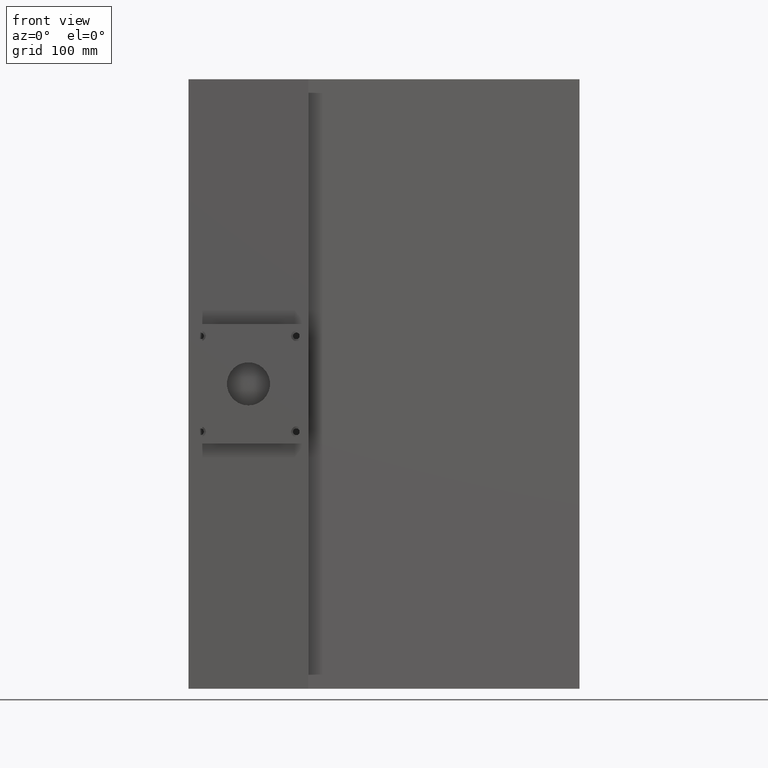
[diagram: clean part render]
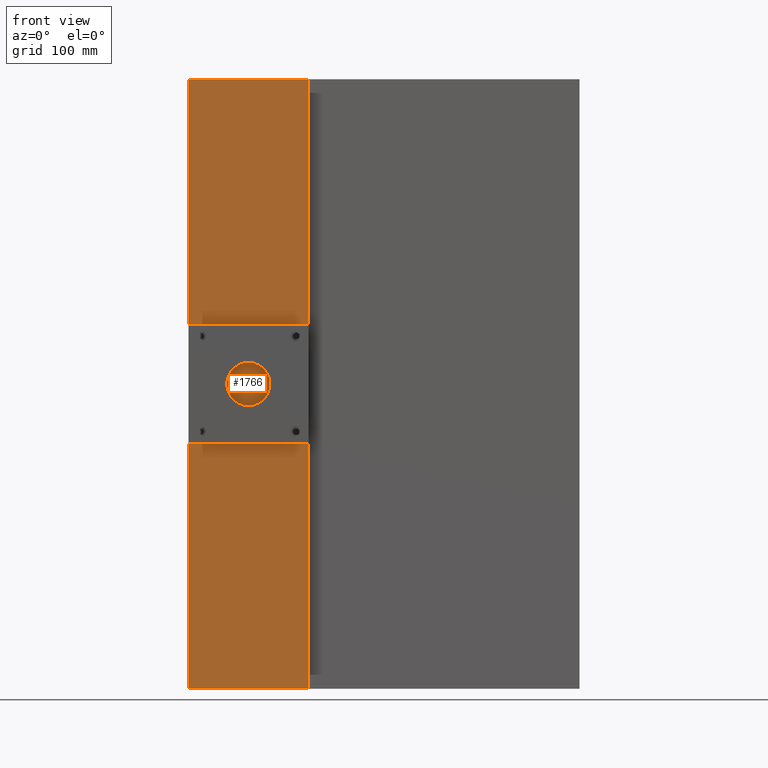
[diagram: same view with one face highlighted and labeled with its STEP entity id]
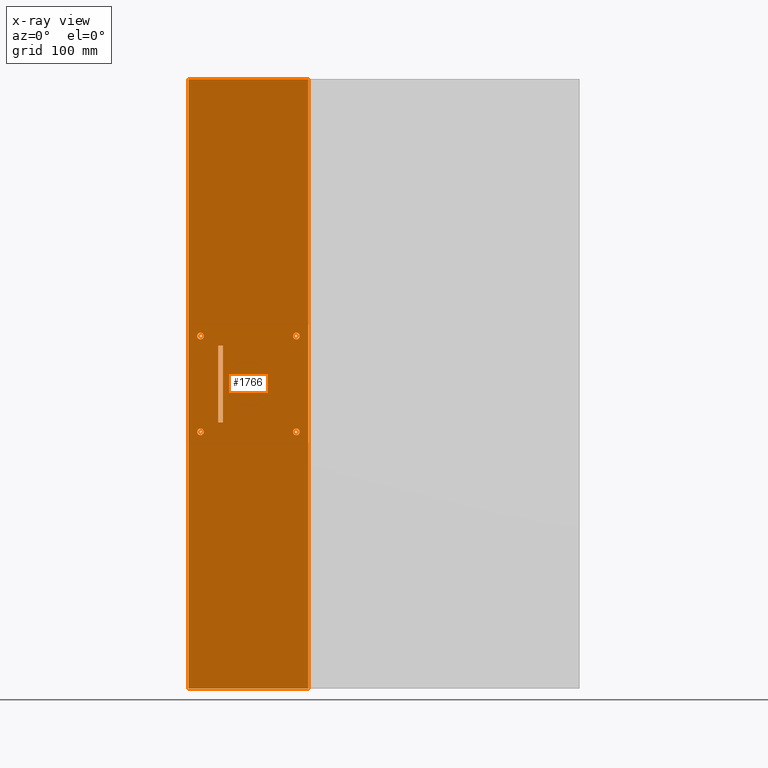
[diagram: x-ray of the same camera — body ghosted, the highlighted face saturated]
A machine part, front view. The second image highlights one B-rep face of the part: STEP entity #1766.
The next image is the same camera in x-ray: the body ghosted, the highlighted face saturated — about 0% of this face is hidden behind the body in this view.
In plain terms, the highlighted planar face has unit normal (0, 1, -0).
Its self-contained STEP definition (entity closure, byte-faithful):
#24 = ORIENTED_EDGE ( 'NONE', *, *, #1451, .F. ) ;
#36 = LINE ( 'NONE', #2541, #110 ) ;
#74 = VERTEX_POINT ( 'NONE', #1761 ) ;
#110 = VECTOR ( 'NONE', #2767, 1000.000000000000000 ) ;
#124 = AXIS2_PLACEMENT_3D ( 'NONE', #817, #826, #828 ) ;
#132 = LINE ( 'NONE', #763, #638 ) ;
#136 = AXIS2_PLACEMENT_3D ( 'NONE', #484, #499, #819 ) ;
#154 = EDGE_CURVE ( 'NONE', #1225, #74, #2526, .T. ) ;
#207 = EDGE_LOOP ( 'NONE', ( #1497, #576 ) ) ;
#208 = EDGE_LOOP ( 'NONE', ( #1564, #479 ) ) ;
#259 = FACE_BOUND ( 'NONE', #208, .T. ) ;
#263 = CARTESIAN_POINT ( 'NONE',  ( 8.383617539203390500, -70.00000000000001400, 50.00000000000004300 ) ) ;
#266 = CARTESIAN_POINT ( 'NONE',  ( -68.11638246079654400, -70.00000000000000000, -39.99999999999997900 ) ) ;
#278 = DIRECTION ( 'NONE',  ( 3.118604001756058900E-016, -1.000000000000000000, 0.0000000000000000000 ) ) ;
#282 = DIRECTION ( 'NONE',  ( 1.000000000000000000, 0.0000000000000000000, 0.0000000000000000000 ) ) ;
#294 = VERTEX_POINT ( 'NONE', #2608 ) ;
#302 = VERTEX_POINT ( 'NONE', #2843 ) ;
#314 = CARTESIAN_POINT ( 'NONE',  ( -91.61638246079657200, -70.00000000000004300, 50.00000000000004300 ) ) ;
#325 = CARTESIAN_POINT ( 'NONE',  ( 11.88361753920339800, -70.00000000000001400, 50.00000000000004300 ) ) ;
#340 = VECTOR ( 'NONE', #2295, 1000.000000000000000 ) ;
#345 = EDGE_CURVE ( 'NONE', #797, #2238, #1992, .T. ) ;
#348 = DIRECTION ( 'NONE',  ( -0.0000000000000000000, -0.0000000000000000000, -1.000000000000000000 ) ) ;
#363 = ORIENTED_EDGE ( 'NONE', *, *, #389, .T. ) ;
#389 = EDGE_CURVE ( 'NONE', #2451, #1396, #1416, .T. ) ;
#412 = CARTESIAN_POINT ( 'NONE',  ( -91.61638246079657200, -70.00000000000004300, 50.00000000000004300 ) ) ;
#424 = VERTEX_POINT ( 'NONE', #2064 ) ;
#479 = ORIENTED_EDGE ( 'NONE', *, *, #2793, .F. ) ;
#484 = CARTESIAN_POINT ( 'NONE',  ( -91.61638246079657200, -70.00000000000004300, -50.00000000000004300 ) ) ;
#499 = DIRECTION ( 'NONE',  ( 3.118604001756058900E-016, -1.000000000000000000, -0.0000000000000000000 ) ) ;
#505 = CIRCLE ( 'NONE', #1754, 3.500000000000008400 ) ;
#576 = ORIENTED_EDGE ( 'NONE', *, *, #345, .F. ) ;
#621 = EDGE_LOOP ( 'NONE', ( #24, #2107 ) ) ;
#632 = DIRECTION ( 'NONE',  ( 3.118604001756058900E-016, -1.000000000000000000, 0.0000000000000000000 ) ) ;
#638 = VECTOR ( 'NONE', #1106, 1000.000000000000000 ) ;
#640 = CARTESIAN_POINT ( 'NONE',  ( 20.88361753920343500, -70.00000000000001400, -318.0000000000000000 ) ) ;
#641 = ORIENTED_EDGE ( 'NONE', *, *, #2844, .F. ) ;
#661 = DIRECTION ( 'NONE',  ( 3.118604001756058900E-016, -1.000000000000000000, 0.0000000000000000000 ) ) ;
#670 = DIRECTION ( 'NONE',  ( 1.000000000000000000, -1.559302000878029000E-016, -0.0000000000000000000 ) ) ;
#676 = VECTOR ( 'NONE', #2469, 1000.000000000000000 ) ;
#727 = CARTESIAN_POINT ( 'NONE',  ( -68.11638246079655800, -70.00000000000000000, 318.0000000000000000 ) ) ;
#763 = CARTESIAN_POINT ( 'NONE',  ( 20.88361753920343500, -70.00000000000001400, 318.0000000000000000 ) ) ;
#797 = VERTEX_POINT ( 'NONE', #2172 ) ;
#817 = CARTESIAN_POINT ( 'NONE',  ( 8.383617539203390500, -70.00000000000001400, -50.00000000000004300 ) ) ;
#819 = DIRECTION ( 'NONE',  ( -1.000000000000000000, 0.0000000000000000000, 0.0000000000000000000 ) ) ;
#826 = DIRECTION ( 'NONE',  ( 3.118604001756058900E-016, -1.000000000000000000, -0.0000000000000000000 ) ) ;
#828 = DIRECTION ( 'NONE',  ( -1.000000000000000000, 0.0000000000000000000, 0.0000000000000000000 ) ) ;
#830 = LINE ( 'NONE', #2463, #676 ) ;
#834 = VECTOR ( 'NONE', #348, 1000.000000000000000 ) ;
#839 = VERTEX_POINT ( 'NONE', #1961 ) ;
#844 = CIRCLE ( 'NONE', #124, 3.500000000000008400 ) ;
#878 = FACE_BOUND ( 'NONE', #2490, .T. ) ;
#937 = EDGE_CURVE ( 'NONE', #2238, #797, #1361, .T. ) ;
#956 = EDGE_LOOP ( 'NONE', ( #2041, #2210, #641, #1271 ) ) ;
#1099 = DIRECTION ( 'NONE',  ( 1.000000000000000000, 0.0000000000000000000, 0.0000000000000000000 ) ) ;
#1106 = DIRECTION ( 'NONE',  ( -0.0000000000000000000, -0.0000000000000000000, -1.000000000000000000 ) ) ;
#1159 = CARTESIAN_POINT ( 'NONE',  ( 20.88361753920343500, -70.00000000000001400, 318.0000000000000000 ) ) ;
#1185 = CIRCLE ( 'NONE', #136, 3.500000000000003100 ) ;
#1194 = VERTEX_POINT ( 'NONE', #325 ) ;
#1218 = EDGE_CURVE ( 'NONE', #1396, #1793, #36, .T. ) ;
#1225 = VERTEX_POINT ( 'NONE', #1788 ) ;
#1243 = DIRECTION ( 'NONE',  ( -1.000000000000000000, 0.0000000000000000000, 0.0000000000000000000 ) ) ;
#1271 = ORIENTED_EDGE ( 'NONE', *, *, #1872, .F. ) ;
#1361 = CIRCLE ( 'NONE', #1652, 3.500000000000003100 ) ;
#1396 = VERTEX_POINT ( 'NONE', #266 ) ;
#1416 = LINE ( 'NONE', #727, #340 ) ;
#1451 = EDGE_CURVE ( 'NONE', #294, #839, #844, .T. ) ;
#1497 = ORIENTED_EDGE ( 'NONE', *, *, #937, .F. ) ;
#1514 = CARTESIAN_POINT ( 'NONE',  ( 4.883617539203381600, -70.00000000000001400, 50.00000000000004300 ) ) ;
#1555 = CARTESIAN_POINT ( 'NONE',  ( 20.88361753920343500, -70.00000000000001400, 318.0000000000000000 ) ) ;
#1556 = PLANE ( 'NONE',  #1931 ) ;
#1562 = DIRECTION ( 'NONE',  ( 1.559302000878029200E-016, 1.000000000000000000, -0.0000000000000000000 ) ) ;
#1564 = ORIENTED_EDGE ( 'NONE', *, *, #154, .F. ) ;
#1568 = DIRECTION ( 'NONE',  ( -1.000000000000000000, 1.559302000878029200E-016, 0.0000000000000000000 ) ) ;
#1593 = VERTEX_POINT ( 'NONE', #1159 ) ;
#1596 = CARTESIAN_POINT ( 'NONE',  ( -73.11638246079655800, -70.00000000000000000, -39.99999999999997900 ) ) ;
#1629 = CIRCLE ( 'NONE', #2222, 3.500000000000008400 ) ;
#1652 = AXIS2_PLACEMENT_3D ( 'NONE', #314, #661, #2794 ) ;
#1653 = CARTESIAN_POINT ( 'NONE',  ( 8.383617539203390500, -70.00000000000001400, -50.00000000000004300 ) ) ;
#1655 = DIRECTION ( 'NONE',  ( 3.118604001756058900E-016, -1.000000000000000000, -0.0000000000000000000 ) ) ;
#1659 = DIRECTION ( 'NONE',  ( -1.000000000000000000, 0.0000000000000000000, 0.0000000000000000000 ) ) ;
#1675 = ORIENTED_EDGE ( 'NONE', *, *, #2788, .F. ) ;
#1714 = FACE_BOUND ( 'NONE', #2826, .T. ) ;
#1749 = VERTEX_POINT ( 'NONE', #1514 ) ;
#1754 = AXIS2_PLACEMENT_3D ( 'NONE', #2004, #2008, #2009 ) ;
#1758 = CARTESIAN_POINT ( 'NONE',  ( -73.11638246079655800, -70.00000000000001400, 318.0000000000000000 ) ) ;
#1761 = CARTESIAN_POINT ( 'NONE',  ( -95.11638246079658600, -70.00000000000004300, -50.00000000000004300 ) ) ;
#1762 = DIRECTION ( 'NONE',  ( 1.000000000000000000, 4.476705744456276300E-016, -0.0000000000000000000 ) ) ;
#1766 = ADVANCED_FACE ( 'NONE', ( #1714, #259, #2932, #2091, #2868, #878 ), #1556, .F. ) ;
#1788 = CARTESIAN_POINT ( 'NONE',  ( -88.11638246079657200, -70.00000000000004300, -50.00000000000004300 ) ) ;
#1789 = ORIENTED_EDGE ( 'NONE', *, *, #1218, .T. ) ;
#1793 = VERTEX_POINT ( 'NONE', #1596 ) ;
#1803 = CARTESIAN_POINT ( 'NONE',  ( -88.11638246079657200, -70.00000000000004300, 50.00000000000004300 ) ) ;
#1812 = EDGE_CURVE ( 'NONE', #839, #294, #2774, .T. ) ;
#1850 = LINE ( 'NONE', #2769, #2118 ) ;
#1872 = EDGE_CURVE ( 'NONE', #2766, #1593, #2254, .T. ) ;
#1911 = AXIS2_PLACEMENT_3D ( 'NONE', #412, #632, #1099 ) ;
#1931 = AXIS2_PLACEMENT_3D ( 'NONE', #1555, #1562, #1568 ) ;
#1961 = CARTESIAN_POINT ( 'NONE',  ( 4.883617539203381600, -70.00000000000001400, -50.00000000000004300 ) ) ;
#1992 = CIRCLE ( 'NONE', #1911, 3.500000000000003100 ) ;
#2004 = CARTESIAN_POINT ( 'NONE',  ( 8.383617539203390500, -70.00000000000001400, 50.00000000000004300 ) ) ;
#2008 = DIRECTION ( 'NONE',  ( 3.118604001756058900E-016, -1.000000000000000000, 0.0000000000000000000 ) ) ;
#2009 = DIRECTION ( 'NONE',  ( 1.000000000000000000, 0.0000000000000000000, 0.0000000000000000000 ) ) ;
#2010 = EDGE_CURVE ( 'NONE', #1749, #1194, #505, .T. ) ;
#2015 = ORIENTED_EDGE ( 'NONE', *, *, #2270, .F. ) ;
#2041 = ORIENTED_EDGE ( 'NONE', *, *, #2627, .T. ) ;
#2059 = AXIS2_PLACEMENT_3D ( 'NONE', #1653, #1655, #1659 ) ;
#2064 = CARTESIAN_POINT ( 'NONE',  ( -73.11638246079655800, -70.00000000000001400, 40.00000000000009200 ) ) ;
#2091 = FACE_BOUND ( 'NONE', #207, .T. ) ;
#2107 = ORIENTED_EDGE ( 'NONE', *, *, #1812, .F. ) ;
#2118 = VECTOR ( 'NONE', #2790, 1000.000000000000000 ) ;
#2172 = CARTESIAN_POINT ( 'NONE',  ( -95.11638246079658600, -70.00000000000004300, 50.00000000000004300 ) ) ;
#2203 = ORIENTED_EDGE ( 'NONE', *, *, #2010, .F. ) ;
#2210 = ORIENTED_EDGE ( 'NONE', *, *, #2837, .T. ) ;
#2222 = AXIS2_PLACEMENT_3D ( 'NONE', #263, #278, #282 ) ;
#2225 = AXIS2_PLACEMENT_3D ( 'NONE', #2834, #2916, #1243 ) ;
#2238 = VERTEX_POINT ( 'NONE', #1803 ) ;
#2254 = LINE ( 'NONE', #1758, #2324 ) ;
#2260 = ORIENTED_EDGE ( 'NONE', *, *, #2460, .F. ) ;
#2270 = EDGE_CURVE ( 'NONE', #1194, #1749, #1629, .T. ) ;
#2295 = DIRECTION ( 'NONE',  ( -0.0000000000000000000, -0.0000000000000000000, -1.000000000000000000 ) ) ;
#2324 = VECTOR ( 'NONE', #1762, 1000.000000000000000 ) ;
#2433 = CARTESIAN_POINT ( 'NONE',  ( -68.11638246079655800, -70.00000000000000000, 40.00000000000003600 ) ) ;
#2451 = VERTEX_POINT ( 'NONE', #2433 ) ;
#2460 = EDGE_CURVE ( 'NONE', #2451, #424, #830, .T. ) ;
#2463 = CARTESIAN_POINT ( 'NONE',  ( 210.6021135167758300, -70.00000000000000000, 39.99999999999997900 ) ) ;
#2469 = DIRECTION ( 'NONE',  ( -1.000000000000000000, -0.0000000000000000000, -0.0000000000000000000 ) ) ;
#2490 = EDGE_LOOP ( 'NONE', ( #1789, #1675, #2260, #363 ) ) ;
#2526 = CIRCLE ( 'NONE', #2225, 3.500000000000003100 ) ;
#2541 = CARTESIAN_POINT ( 'NONE',  ( 210.6021135167758300, -70.00000000000000000, -39.99999999999997900 ) ) ;
#2608 = CARTESIAN_POINT ( 'NONE',  ( 11.88361753920339800, -70.00000000000001400, -50.00000000000004300 ) ) ;
#2611 = VECTOR ( 'NONE', #670, 1000.000000000000000 ) ;
#2627 = EDGE_CURVE ( 'NONE', #2766, #2661, #1850, .T. ) ;
#2661 = VERTEX_POINT ( 'NONE', #2845 ) ;
#2763 = LINE ( 'NONE', #2917, #834 ) ;
#2766 = VERTEX_POINT ( 'NONE', #2935 ) ;
#2767 = DIRECTION ( 'NONE',  ( -1.000000000000000000, -0.0000000000000000000, -0.0000000000000000000 ) ) ;
#2769 = CARTESIAN_POINT ( 'NONE',  ( -104.1163824607965600, -70.00000000000002800, 318.0000000000000000 ) ) ;
#2774 = CIRCLE ( 'NONE', #2059, 3.500000000000008400 ) ;
#2788 = EDGE_CURVE ( 'NONE', #424, #1793, #2763, .T. ) ;
#2790 = DIRECTION ( 'NONE',  ( -0.0000000000000000000, -0.0000000000000000000, -1.000000000000000000 ) ) ;
#2793 = EDGE_CURVE ( 'NONE', #74, #1225, #1185, .T. ) ;
#2794 = DIRECTION ( 'NONE',  ( 1.000000000000000000, 0.0000000000000000000, 0.0000000000000000000 ) ) ;
#2826 = EDGE_LOOP ( 'NONE', ( #2015, #2203 ) ) ;
#2830 = LINE ( 'NONE', #640, #2611 ) ;
#2834 = CARTESIAN_POINT ( 'NONE',  ( -91.61638246079657200, -70.00000000000004300, -50.00000000000004300 ) ) ;
#2837 = EDGE_CURVE ( 'NONE', #2661, #302, #2830, .T. ) ;
#2843 = CARTESIAN_POINT ( 'NONE',  ( 20.88361753920343500, -70.00000000000001400, -318.0000000000000000 ) ) ;
#2844 = EDGE_CURVE ( 'NONE', #1593, #302, #132, .T. ) ;
#2845 = CARTESIAN_POINT ( 'NONE',  ( -104.1163824607965600, -70.00000000000002800, -318.0000000000000000 ) ) ;
#2868 = FACE_OUTER_BOUND ( 'NONE', #956, .T. ) ;
#2916 = DIRECTION ( 'NONE',  ( 3.118604001756058900E-016, -1.000000000000000000, -0.0000000000000000000 ) ) ;
#2917 = CARTESIAN_POINT ( 'NONE',  ( -73.11638246079655800, -70.00000000000001400, 318.0000000000000000 ) ) ;
#2932 = FACE_BOUND ( 'NONE', #621, .T. ) ;
#2935 = CARTESIAN_POINT ( 'NONE',  ( -104.1163824607965600, -70.00000000000002800, 318.0000000000000000 ) ) ;